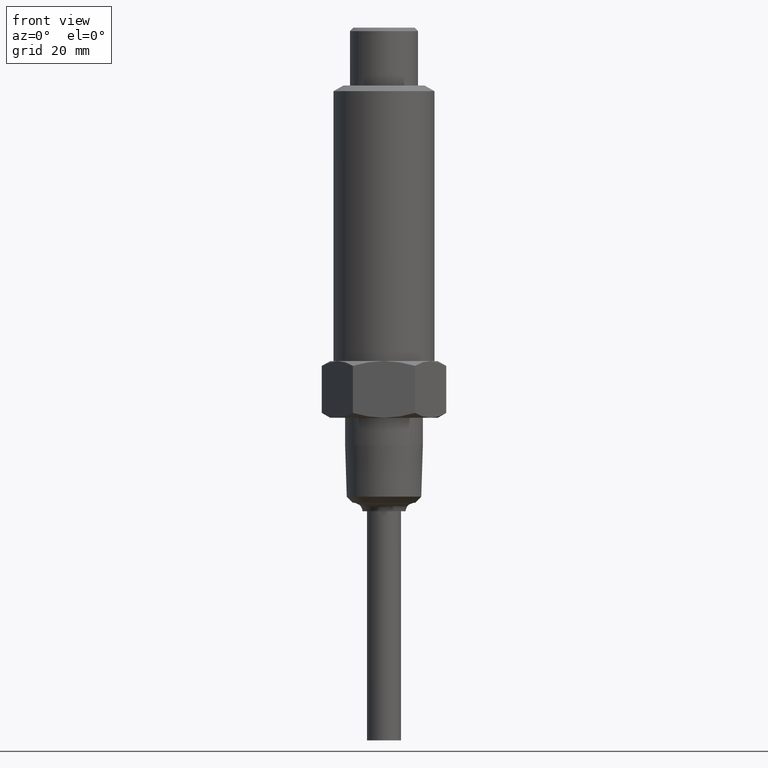
[diagram: clean part render]
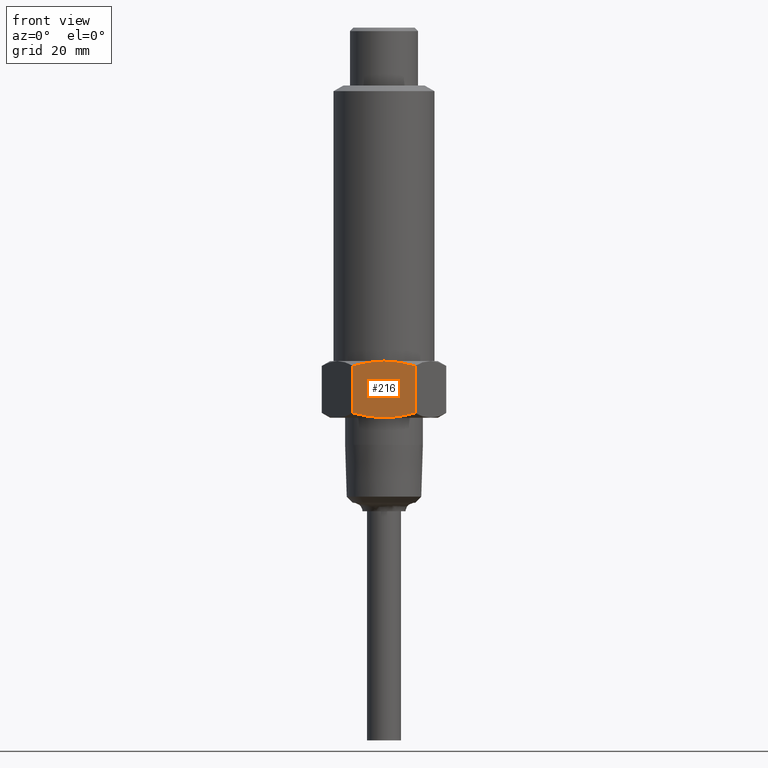
[diagram: same view with one face highlighted and labeled with its STEP entity id]
A machine part, front view. The second image highlights one B-rep face of the part: STEP entity #216.
In plain terms, the highlighted planar face has unit normal (0, -1, 0).
Its self-contained STEP definition (entity closure, byte-faithful):
#44 = DIRECTION ( 'NONE',  ( 2.626350598546010194E-16, -1.000000000000000000, 0.000000000000000000 ) ) ;
#67 = EDGE_CURVE ( 'NONE', #505, #638, #393, .T. ) ;
#74 = EDGE_CURVE ( 'NONE', #516, #638, #1176, .T. ) ;
#120 = CARTESIAN_POINT ( 'NONE',  ( 0.03685099644141393710, -0.3740157480314960092, -2.708661417322835607 ) ) ;
#126 = CARTESIAN_POINT ( 'NONE',  ( 0.2159380928071436001, -0.3740157480314961203, -2.675255678108981794 ) ) ;
#150 = PLANE ( 'NONE',  #981 ) ;
#175 = ORIENTED_EDGE ( 'NONE', *, *, #721, .F. ) ;
#184 = VERTEX_POINT ( 'NONE', #617 ) ;
#193 = CARTESIAN_POINT ( 'NONE',  ( -0.1451106595408000743, -0.3740157480314961203, -2.693837123568708414 ) ) ;
#197 = ORIENTED_EDGE ( 'NONE', *, *, #1116, .T. ) ;
#216 = ADVANCED_FACE ( 'NONE', ( #1077 ), #150, .T. ) ;
#218 = CARTESIAN_POINT ( 'NONE',  ( 0.2159380928071437389, -0.3740157480314960092, -2.314960629921259727 ) ) ;
#238 = CARTESIAN_POINT ( 'NONE',  ( -0.2159380928071436001, -0.3740157480314960092, -2.675255678108981794 ) ) ;
#245 = EDGE_LOOP ( 'NONE', ( #175, #197, #647, #769, #1230, #685 ) ) ;
#249 = CARTESIAN_POINT ( 'NONE',  ( 1.476203503609703816E-17, -0.3740157480314962868, -2.708661417322835163 ) ) ;
#276 = VECTOR ( 'NONE', #1168, 39.37007874015748143 ) ;
#304 = B_SPLINE_CURVE_WITH_KNOTS ( 'NONE', 3,
 ( #1001, #1473, #193, #1009, #1485, #421 ),
 .UNSPECIFIED., .F., .F.,
 ( 4, 2, 4 ),
 ( 6.071532165918825601E-18, 0.002775035827935062871, 0.005550071655870119670 ),
 .UNSPECIFIED. ) ;
#307 = EDGE_CURVE ( 'NONE', #184, #516, #424, .T. ) ;
#310 = CARTESIAN_POINT ( 'NONE',  ( 0.2159380928071436001, -0.3740157480314961203, -2.675255678108981794 ) ) ;
#339 = CARTESIAN_POINT ( 'NONE',  ( 0.2159380937860195804, -0.3740157463360332946, -2.348366368569958507 ) ) ;
#349 = CARTESIAN_POINT ( 'NONE',  ( 0.03685099659905182595, -0.3740157480314960092, -2.314960629921258839 ) ) ;
#371 = CARTESIAN_POINT ( 'NONE',  ( 1.519364121616389848E-16, -0.3740157480314960647, -2.314960629921259727 ) ) ;
#393 = B_SPLINE_CURVE_WITH_KNOTS ( 'NONE', 3,
 ( #553, #349, #689, #924, #451, #339 ),
 .UNSPECIFIED., .F., .F.,
 ( 4, 2, 4 ),
 ( 1.830959457155381368E-19, 0.002775035839123335835, 0.005550071678246671671 ),
 .UNSPECIFIED. ) ;
#421 = CARTESIAN_POINT ( 'NONE',  ( 1.476203503609703816E-17, -0.3740157480314962868, -2.708661417322835163 ) ) ;
#424 = B_SPLINE_CURVE_WITH_KNOTS ( 'NONE', 3,
 ( #249, #120, #1174, #1400, #1277, #126 ),
 .UNSPECIFIED., .F., .F.,
 ( 4, 2, 4 ),
 ( 1.877781695777554957E-33, 0.002775035827935056799, 0.005550071655870113599 ),
 .UNSPECIFIED. ) ;
#451 = CARTESIAN_POINT ( 'NONE',  ( 0.1806624458331834715, -0.3740157480314960092, -2.338183166904186372 ) ) ;
#454 = CARTESIAN_POINT ( 'NONE',  ( -0.2159380928071433225, -0.3740157480314958427, -2.314960629921259727 ) ) ;
#461 = CARTESIAN_POINT ( 'NONE',  ( 7.608659581666977223E-17, -0.3740157480314962868, -2.314960629921258839 ) ) ;
#470 = VERTEX_POINT ( 'NONE', #1084 ) ;
#505 = VERTEX_POINT ( 'NONE', #551 ) ;
#516 = VERTEX_POINT ( 'NONE', #310 ) ;
#530 = B_SPLINE_CURVE_WITH_KNOTS ( 'NONE', 3,
 ( #1044, #699, #1391, #558, #1418, #461 ),
 .UNSPECIFIED., .F., .F.,
 ( 4, 2, 4 ),
 ( 0.000000000000000000, 0.002775035777175386027, 0.005550071554350772055 ),
 .UNSPECIFIED. ) ;
#551 = CARTESIAN_POINT ( 'NONE',  ( 7.608659581666977223E-17, -0.3740157480314962868, -2.314960629921258839 ) ) ;
#553 = CARTESIAN_POINT ( 'NONE',  ( 7.608659581666977223E-17, -0.3740157480314962868, -2.314960629921258839 ) ) ;
#558 = CARTESIAN_POINT ( 'NONE',  ( -0.07320793526356629555, -0.3740157480314960647, -2.318154259651527660 ) ) ;
#617 = CARTESIAN_POINT ( 'NONE',  ( 1.476203503609703816E-17, -0.3740157480314962868, -2.708661417322835163 ) ) ;
#633 = VERTEX_POINT ( 'NONE', #238 ) ;
#638 = VERTEX_POINT ( 'NONE', #1059 ) ;
#647 = ORIENTED_EDGE ( 'NONE', *, *, #307, .T. ) ;
#668 = EDGE_CURVE ( 'NONE', #470, #505, #530, .T. ) ;
#685 = ORIENTED_EDGE ( 'NONE', *, *, #668, .F. ) ;
#689 = CARTESIAN_POINT ( 'NONE',  ( 0.07320793693113077094, -0.3740157480314961203, -2.318154259800961459 ) ) ;
#699 = CARTESIAN_POINT ( 'NONE',  ( -0.1806624401197483853, -0.3740157485995631026, -2.338183165122325935 ) ) ;
#721 = EDGE_CURVE ( 'NONE', #633, #470, #1514, .T. ) ;
#769 = ORIENTED_EDGE ( 'NONE', *, *, #74, .T. ) ;
#924 = CARTESIAN_POINT ( 'NONE',  ( 0.1451106601291025089, -0.3740157480314961203, -2.329784923792494133 ) ) ;
#927 = DIRECTION ( 'NONE',  ( -0.000000000000000000, 0.000000000000000000, 1.000000000000000000 ) ) ;
#981 = AXIS2_PLACEMENT_3D ( 'NONE', #371, #44, #1329 ) ;
#1001 = CARTESIAN_POINT ( 'NONE',  ( -0.2159380928071436001, -0.3740157480314960092, -2.675255678108981794 ) ) ;
#1009 = CARTESIAN_POINT ( 'NONE',  ( -0.07320793662531137336, -0.3740157480314960647, -2.705467787470653640 ) ) ;
#1044 = CARTESIAN_POINT ( 'NONE',  ( -0.2159380908493919171, -0.3740157480314960092, -2.348366368569958507 ) ) ;
#1059 = CARTESIAN_POINT ( 'NONE',  ( 0.2159380937860195804, -0.3740157463360332946, -2.348366368569958507 ) ) ;
#1077 = FACE_OUTER_BOUND ( 'NONE', #245, .T. ) ;
#1084 = CARTESIAN_POINT ( 'NONE',  ( -0.2159380908493919171, -0.3740157480314960092, -2.348366368569958507 ) ) ;
#1116 = EDGE_CURVE ( 'NONE', #633, #184, #304, .T. ) ;
#1168 = DIRECTION ( 'NONE',  ( -0.000000000000000000, 0.000000000000000000, 1.000000000000000000 ) ) ;
#1174 = CARTESIAN_POINT ( 'NONE',  ( 0.07320793662531142887, -0.3740157480314961203, -2.705467787470654972 ) ) ;
#1176 = LINE ( 'NONE', #218, #276 ) ;
#1230 = ORIENTED_EDGE ( 'NONE', *, *, #67, .F. ) ;
#1277 = CARTESIAN_POINT ( 'NONE',  ( 0.1806624433306805444, -0.3740157480314960092, -2.685438880969519104 ) ) ;
#1329 = DIRECTION ( 'NONE',  ( 1.000000000000000000, 2.626350598546010194E-16, 0.000000000000000000 ) ) ;
#1359 = VECTOR ( 'NONE', #927, 39.37007874015748143 ) ;
#1391 = CARTESIAN_POINT ( 'NONE',  ( -0.1451106568955093656, -0.3740157480314961203, -2.329784923149139431 ) ) ;
#1400 = CARTESIAN_POINT ( 'NONE',  ( 0.1451106595408001299, -0.3740157480314961203, -2.693837123568707526 ) ) ;
#1418 = CARTESIAN_POINT ( 'NONE',  ( -0.03685099574458013810, -0.3740157480314961203, -2.314960629921258839 ) ) ;
#1473 = CARTESIAN_POINT ( 'NONE',  ( -0.1806624433306801836, -0.3740157480314961203, -2.685438880969519104 ) ) ;
#1485 = CARTESIAN_POINT ( 'NONE',  ( -0.03685099644141403424, -0.3740157480314961203, -2.708661417322835163 ) ) ;
#1514 = LINE ( 'NONE', #454, #1359 ) ;